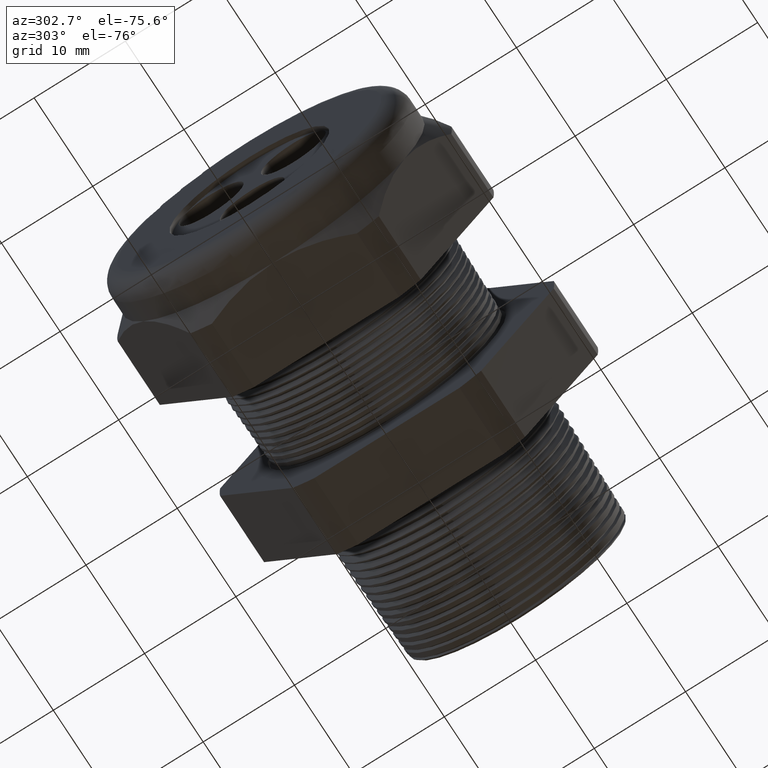
[diagram: clean part render]
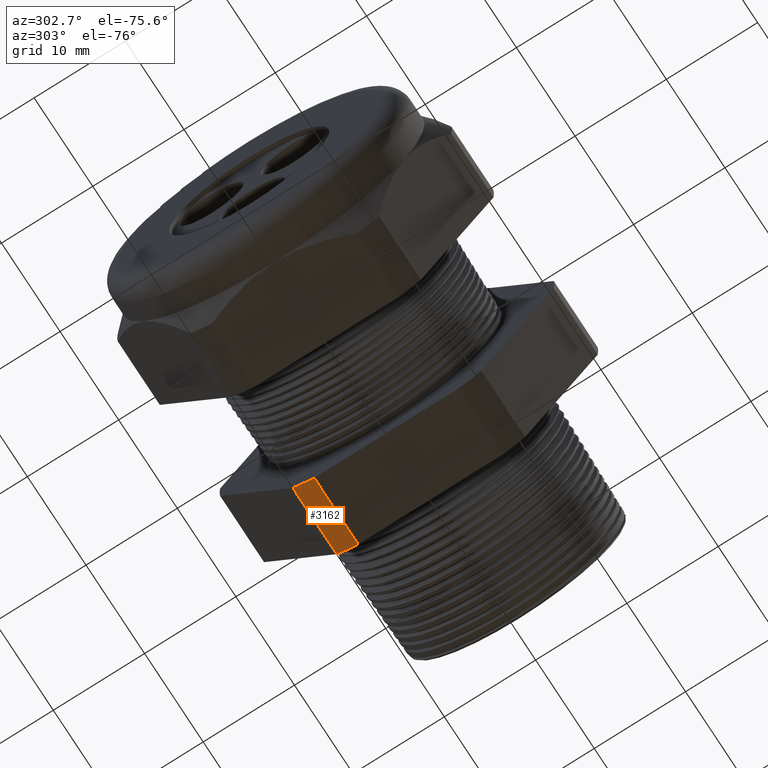
[diagram: same view with one face highlighted and labeled with its STEP entity id]
A machine part, auxiliary view. The second image highlights one B-rep face of the part: STEP entity #3162.
In plain terms, the highlighted cylindrical surface (partial cylindrical patch) has radius 18.3261 mm, axis along (-1, 0, 0).
Its self-contained STEP definition (entity closure, byte-faithful):
#3092 = VERTEX_POINT ( 'NONE', #5639 ) ;
#3148 = VERTEX_POINT ( 'NONE', #5819 ) ;
#3150 = EDGE_CURVE ( 'NONE', #3148, #3092, #5818, .T. ) ;
#3158 = EDGE_CURVE ( 'NONE', #3092, #3159, #5807, .T. ) ;
#3159 = VERTEX_POINT ( 'NONE', #5803 ) ;
#3162 = ADVANCED_FACE ( 'NONE', ( #5798 ), #5797, .T. ) ;
#3163 = EDGE_LOOP ( 'NONE', ( #3164, #3217, #3218, #3221 ) ) ;
#3164 = ORIENTED_EDGE ( 'NONE', *, *, #3158, .F. ) ;
#3217 = ORIENTED_EDGE ( 'NONE', *, *, #3150, .F. ) ;
#3218 = ORIENTED_EDGE ( 'NONE', *, *, #3219, .T. ) ;
#3219 = EDGE_CURVE ( 'NONE', #3148, #3220, #5951, .T. ) ;
#3220 = VERTEX_POINT ( 'NONE', #5947 ) ;
#3221 = ORIENTED_EDGE ( 'NONE', *, *, #3222, .F. ) ;
#3222 = EDGE_CURVE ( 'NONE', #3159, #3220, #5946, .T. ) ;
#5639 = CARTESIAN_POINT ( 'NONE',  ( -0.3100000000000000000, 0.4063420493440892400, -0.5961949252843785600 ) ) ;
#5793 = DIRECTION ( 'NONE',  ( -1.000000000000000000, 0.0000000000000000000, 0.0000000000000000000 ) ) ;
#5794 = CARTESIAN_POINT ( 'NONE',  ( 0.2800000000000000300, 0.0000000000000000000, 0.0000000000000000000 ) ) ;
#5795 = AXIS2_PLACEMENT_3D ( 'NONE', #5794, #5793, #5855 ) ;
#5797 = CYLINDRICAL_SURFACE ( 'NONE', #5795, 0.7215000000000000300 ) ;
#5798 = FACE_OUTER_BOUND ( 'NONE', #3163, .T. ) ;
#5803 = CARTESIAN_POINT ( 'NONE',  ( -0.6052755905511810800, 0.4063420493440893000, -0.5961949252843785600 ) ) ;
#5804 = DIRECTION ( 'NONE',  ( -1.000000000000000000, 0.0000000000000000000, 0.0000000000000000000 ) ) ;
#5805 = VECTOR ( 'NONE', #5804, 39.37007874015748100 ) ;
#5806 = CARTESIAN_POINT ( 'NONE',  ( 0.2800000000000000300, 0.4063420493440892400, -0.5961949252843785600 ) ) ;
#5807 = LINE ( 'NONE', #5806, #5805 ) ;
#5814 = DIRECTION ( 'NONE',  ( 0.0000000000000000000, 0.0000000000000000000, -1.000000000000000000 ) ) ;
#5815 = DIRECTION ( 'NONE',  ( 1.000000000000000000, 0.0000000000000000000, 0.0000000000000000000 ) ) ;
#5816 = CARTESIAN_POINT ( 'NONE',  ( -0.3100000000000000000, 0.0000000000000000000, 0.0000000000000000000 ) ) ;
#5817 = AXIS2_PLACEMENT_3D ( 'NONE', #5816, #5815, #5814 ) ;
#5818 = CIRCLE ( 'NONE', #5817, 0.7215000000000000300 ) ;
#5819 = CARTESIAN_POINT ( 'NONE',  ( -0.3100000000000000000, 0.3131489262315934100, -0.6500000000000001300 ) ) ;
#5855 = DIRECTION ( 'NONE',  ( 0.0000000000000000000, 0.0000000000000000000, 1.000000000000000000 ) ) ;
#5942 = DIRECTION ( 'NONE',  ( 0.0000000000000000000, 0.0000000000000000000, 1.000000000000000000 ) ) ;
#5943 = DIRECTION ( 'NONE',  ( -1.000000000000000000, 0.0000000000000000000, 0.0000000000000000000 ) ) ;
#5944 = CARTESIAN_POINT ( 'NONE',  ( -0.6052755905511810800, 0.0000000000000000000, 0.0000000000000000000 ) ) ;
#5945 = AXIS2_PLACEMENT_3D ( 'NONE', #5944, #5943, #5942 ) ;
#5946 = CIRCLE ( 'NONE', #5945, 0.7215000000000000300 ) ;
#5947 = CARTESIAN_POINT ( 'NONE',  ( -0.6052755905511810800, 0.3131489262315934100, -0.6500000000000001300 ) ) ;
#5948 = DIRECTION ( 'NONE',  ( -1.000000000000000000, 0.0000000000000000000, 0.0000000000000000000 ) ) ;
#5949 = VECTOR ( 'NONE', #5948, 39.37007874015748100 ) ;
#5950 = CARTESIAN_POINT ( 'NONE',  ( 0.2800000000000000300, 0.3131489262315934100, -0.6500000000000001300 ) ) ;
#5951 = LINE ( 'NONE', #5950, #5949 ) ;